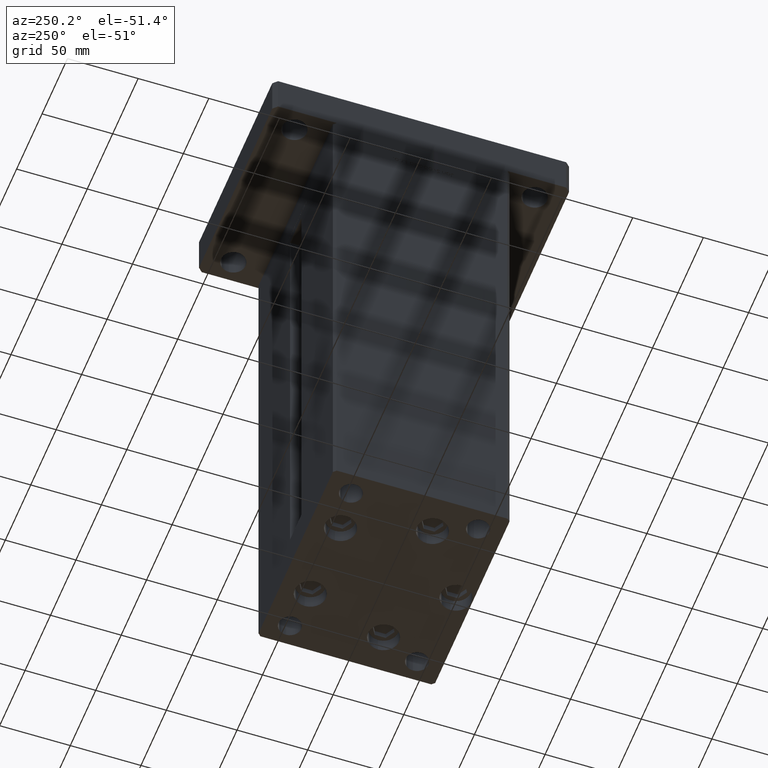
[diagram: clean part render]
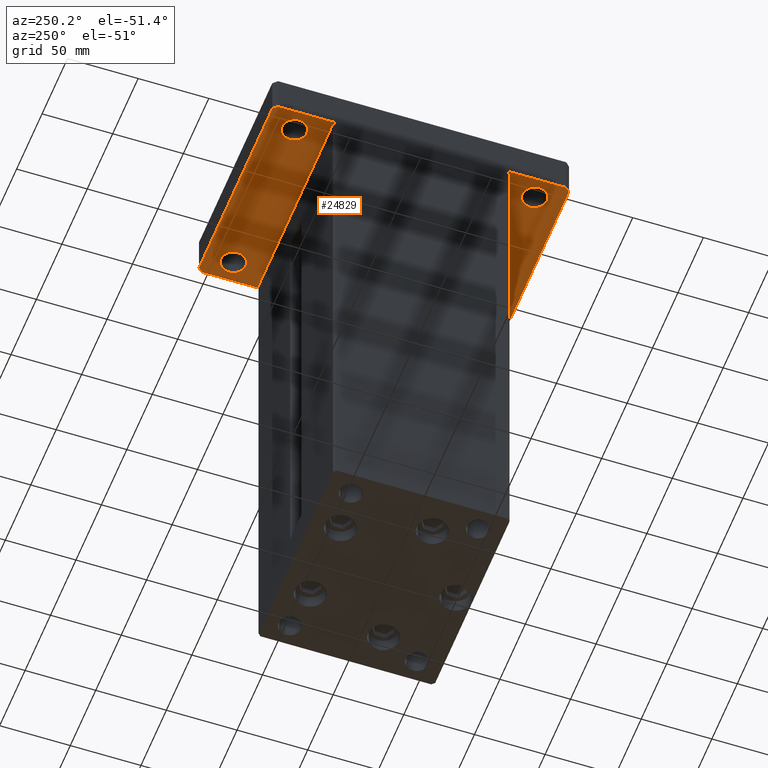
[diagram: same view with one face highlighted and labeled with its STEP entity id]
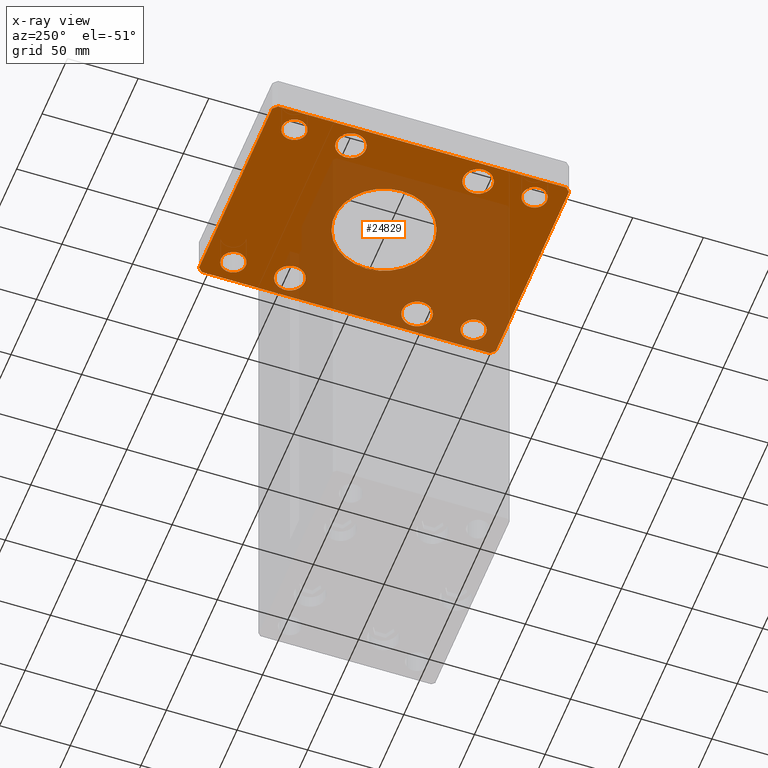
[diagram: x-ray of the same camera — body ghosted, the highlighted face saturated]
A machine part, auxiliary view. The second image highlights one B-rep face of the part: STEP entity #24829.
The next image is the same camera in x-ray: the body ghosted, the highlighted face saturated — about 51% of this face is hidden behind the body in this view.
In plain terms, the highlighted planar face has unit normal (0, 0, 1).
Its self-contained STEP definition (entity closure, byte-faithful):
#255 = CARTESIAN_POINT ( 'NONE',  ( -51.25000000000000000, 84.99999999999997158, 0.000000000000000000 ) ) ;
#442 = ORIENTED_EDGE ( 'NONE', *, *, #50654, .T. ) ;
#470 = CARTESIAN_POINT ( 'NONE',  ( 72.00000000000001421, -104.9999999999999005, 0.000000000000000000 ) ) ;
#559 = DIRECTION ( 'NONE',  ( 1.000000000000000000, 0.000000000000000000, 0.000000000000000000 ) ) ;
#1242 = EDGE_CURVE ( 'NONE', #22405, #18021, #42862, .T. ) ;
#1316 = DIRECTION ( 'NONE',  ( 0.000000000000000000, 0.000000000000000000, 1.000000000000000000 ) ) ;
#1515 = CARTESIAN_POINT ( 'NONE',  ( -60.00000000000000000, -45.00000000000000000, 0.000000000000000000 ) ) ;
#1863 = ORIENTED_EDGE ( 'NONE', *, *, #11640, .T. ) ;
#1977 = DIRECTION ( 'NONE',  ( 1.000000000000000000, 0.000000000000000000, 0.000000000000000000 ) ) ;
#2794 = FACE_BOUND ( 'NONE', #27972, .T. ) ;
#3466 = CARTESIAN_POINT ( 'NONE',  ( -49.49999999999999289, -45.00000000000000000, 0.000000000000000000 ) ) ;
#3600 = CARTESIAN_POINT ( 'NONE',  ( -70.50000000000000000, 45.00000000000001421, 0.000000000000000000 ) ) ;
#3755 = DIRECTION ( 'NONE',  ( 0.000000000000000000, 0.000000000000000000, 1.000000000000000000 ) ) ;
#3764 = EDGE_CURVE ( 'NONE', #18021, #22405, #30816, .T. ) ;
#3831 = ORIENTED_EDGE ( 'NONE', *, *, #45030, .T. ) ;
#3991 = CARTESIAN_POINT ( 'NONE',  ( -72.00000000000002842, 105.0000000000000000, 0.000000000000000000 ) ) ;
#4658 = DIRECTION ( 'NONE',  ( 1.000000000000000000, 0.000000000000000000, 0.000000000000000000 ) ) ;
#5007 = CIRCLE ( 'NONE', #30088, 8.750000000000007105 ) ;
#5110 = CARTESIAN_POINT ( 'NONE',  ( 59.99999999999997158, -85.00000000000001421, 0.000000000000000000 ) ) ;
#5449 = DIRECTION ( 'NONE',  ( 0.7071067811865474617, -0.7071067811865474617, 0.000000000000000000 ) ) ;
#5550 = EDGE_CURVE ( 'NONE', #18678, #5572, #30009, .T. ) ;
#5572 = VERTEX_POINT ( 'NONE', #44229 ) ;
#5652 = CARTESIAN_POINT ( 'NONE',  ( -60.00000000000000711, 84.99999999999997158, 0.000000000000000000 ) ) ;
#5734 = VERTEX_POINT ( 'NONE', #34669 ) ;
#5773 = VERTEX_POINT ( 'NONE', #10308 ) ;
#5792 = AXIS2_PLACEMENT_3D ( 'NONE', #19016, #35539, #1977 ) ;
#6113 = DIRECTION ( 'NONE',  ( 0.000000000000000000, 0.000000000000000000, 1.000000000000000000 ) ) ;
#6199 = DIRECTION ( 'NONE',  ( 0.000000000000000000, 0.000000000000000000, -1.000000000000000000 ) ) ;
#6334 = EDGE_CURVE ( 'NONE', #7937, #37228, #12750, .T. ) ;
#6558 = AXIS2_PLACEMENT_3D ( 'NONE', #19224, #52534, #15164 ) ;
#6820 = ORIENTED_EDGE ( 'NONE', *, *, #10736, .F. ) ;
#6857 = CIRCLE ( 'NONE', #18946, 10.49999999999999467 ) ;
#7284 = DIRECTION ( 'NONE',  ( 6.802837160693364103E-17, 1.000000000000000000, 0.000000000000000000 ) ) ;
#7603 = CIRCLE ( 'NONE', #50005, 10.49999999999999467 ) ;
#7937 = VERTEX_POINT ( 'NONE', #34480 ) ;
#8253 = DIRECTION ( 'NONE',  ( -1.000000000000000000, 0.000000000000000000, 0.000000000000000000 ) ) ;
#8947 = EDGE_CURVE ( 'NONE', #15430, #33850, #51732, .T. ) ;
#8950 = CARTESIAN_POINT ( 'NONE',  ( 68.74999999999997158, -85.00000000000001421, 0.000000000000000000 ) ) ;
#9074 = EDGE_LOOP ( 'NONE', ( #40344, #45353 ) ) ;
#9113 = EDGE_CURVE ( 'NONE', #37228, #7937, #9364, .T. ) ;
#9364 = CIRCLE ( 'NONE', #33563, 8.750000000000007105 ) ;
#9887 = EDGE_LOOP ( 'NONE', ( #19786, #40330 ) ) ;
#10308 = CARTESIAN_POINT ( 'NONE',  ( -72.00000000000002842, 105.0000000000000000, 0.000000000000000000 ) ) ;
#10532 = VECTOR ( 'NONE', #48154, 1000.000000000000000 ) ;
#10736 = EDGE_CURVE ( 'NONE', #40524, #5773, #31709, .T. ) ;
#11025 = CARTESIAN_POINT ( 'NONE',  ( -51.24999999999996447, -85.00000000000001421, 0.000000000000000000 ) ) ;
#11133 = DIRECTION ( 'NONE',  ( 0.000000000000000000, 0.000000000000000000, 1.000000000000000000 ) ) ;
#11166 = VECTOR ( 'NONE', #37466, 1000.000000000000000 ) ;
#11192 = CARTESIAN_POINT ( 'NONE',  ( -71.99999999999998579, -105.0000000000000142, 0.000000000000000000 ) ) ;
#11310 = CIRCLE ( 'NONE', #12166, 8.750000000000007105 ) ;
#11462 = PLANE ( 'NONE',  #20946 ) ;
#11617 = CARTESIAN_POINT ( 'NONE',  ( 75.00000000000000000, -101.9999999999999005, 0.000000000000000000 ) ) ;
#11631 = VECTOR ( 'NONE', #5449, 1000.000000000000114 ) ;
#11640 = EDGE_CURVE ( 'NONE', #5572, #18678, #6857, .T. ) ;
#11815 = AXIS2_PLACEMENT_3D ( 'NONE', #5652, #18343, #47086 ) ;
#12091 = EDGE_CURVE ( 'NONE', #14065, #50111, #40575, .T. ) ;
#12098 = DIRECTION ( 'NONE',  ( 0.000000000000000000, 0.000000000000000000, 1.000000000000000000 ) ) ;
#12166 = AXIS2_PLACEMENT_3D ( 'NONE', #37921, #20588, #29775 ) ;
#12247 = ORIENTED_EDGE ( 'NONE', *, *, #14221, .T. ) ;
#12286 = ORIENTED_EDGE ( 'NONE', *, *, #3764, .T. ) ;
#12617 = CARTESIAN_POINT ( 'NONE',  ( -68.75000000000000000, 84.99999999999997158, 0.000000000000000000 ) ) ;
#12750 = CIRCLE ( 'NONE', #23112, 8.750000000000007105 ) ;
#12839 = ORIENTED_EDGE ( 'NONE', *, *, #22794, .T. ) ;
#12900 = AXIS2_PLACEMENT_3D ( 'NONE', #22163, #6199, #51951 ) ;
#13592 = ORIENTED_EDGE ( 'NONE', *, *, #8947, .F. ) ;
#13865 = AXIS2_PLACEMENT_3D ( 'NONE', #22708, #14593, #30577 ) ;
#13905 = AXIS2_PLACEMENT_3D ( 'NONE', #20594, #49330, #53109 ) ;
#14065 = VERTEX_POINT ( 'NONE', #18574 ) ;
#14221 = EDGE_CURVE ( 'NONE', #29335, #16479, #47576, .T. ) ;
#14223 = CARTESIAN_POINT ( 'NONE',  ( 60.00000000000000000, 84.99999999999998579, 0.000000000000000000 ) ) ;
#14593 = DIRECTION ( 'NONE',  ( 0.000000000000000000, 0.000000000000000000, 1.000000000000000000 ) ) ;
#14933 = CARTESIAN_POINT ( 'NONE',  ( -75.00000000000001421, 102.0000000000000000, 0.000000000000000000 ) ) ;
#15128 = CARTESIAN_POINT ( 'NONE',  ( -60.00000000000000000, 45.00000000000001421, 0.000000000000000000 ) ) ;
#15164 = DIRECTION ( 'NONE',  ( 1.000000000000000000, 0.000000000000000000, 0.000000000000000000 ) ) ;
#15430 = VERTEX_POINT ( 'NONE', #22259 ) ;
#15782 = FACE_BOUND ( 'NONE', #43465, .T. ) ;
#15871 = EDGE_LOOP ( 'NONE', ( #38542, #12247 ) ) ;
#16002 = VERTEX_POINT ( 'NONE', #470 ) ;
#16479 = VERTEX_POINT ( 'NONE', #3600 ) ;
#16834 = AXIS2_PLACEMENT_3D ( 'NONE', #14223, #21538, #50789 ) ;
#16905 = CARTESIAN_POINT ( 'NONE',  ( 0.000000000000000000, 0.000000000000000000, 0.000000000000000000 ) ) ;
#17398 = VERTEX_POINT ( 'NONE', #46924 ) ;
#17430 = CIRCLE ( 'NONE', #46882, 10.50000000000000178 ) ;
#18021 = VERTEX_POINT ( 'NONE', #12617 ) ;
#18229 = DIRECTION ( 'NONE',  ( 1.000000000000000000, 0.000000000000000000, 0.000000000000000000 ) ) ;
#18343 = DIRECTION ( 'NONE',  ( 0.000000000000000000, 0.000000000000000000, 1.000000000000000000 ) ) ;
#18574 = CARTESIAN_POINT ( 'NONE',  ( 70.50000000000000000, -45.00000000000000711, 0.000000000000000000 ) ) ;
#18678 = VERTEX_POINT ( 'NONE', #50751 ) ;
#18715 = DIRECTION ( 'NONE',  ( 0.000000000000000000, 0.000000000000000000, 1.000000000000000000 ) ) ;
#18758 = DIRECTION ( 'NONE',  ( 0.000000000000000000, 0.000000000000000000, 1.000000000000000000 ) ) ;
#18946 = AXIS2_PLACEMENT_3D ( 'NONE', #21381, #28728, #559 ) ;
#18985 = DIRECTION ( 'NONE',  ( -1.000000000000000000, -1.927470528863118062E-16, 0.000000000000000000 ) ) ;
#19016 = CARTESIAN_POINT ( 'NONE',  ( 60.00000000000000000, 45.00000000000000711, 0.000000000000000000 ) ) ;
#19027 = CIRCLE ( 'NONE', #19878, 10.50000000000000178 ) ;
#19035 = FACE_BOUND ( 'NONE', #9074, .T. ) ;
#19224 = CARTESIAN_POINT ( 'NONE',  ( -60.00000000000000711, 84.99999999999997158, 0.000000000000000000 ) ) ;
#19301 = FACE_OUTER_BOUND ( 'NONE', #43524, .T. ) ;
#19560 = FACE_BOUND ( 'NONE', #37955, .T. ) ;
#19684 = LINE ( 'NONE', #40831, #10532 ) ;
#19760 = VECTOR ( 'NONE', #35277, 1000.000000000000000 ) ;
#19786 = ORIENTED_EDGE ( 'NONE', *, *, #39595, .T. ) ;
#19878 = AXIS2_PLACEMENT_3D ( 'NONE', #15128, #3755, #40860 ) ;
#19926 = VERTEX_POINT ( 'NONE', #14933 ) ;
#20085 = EDGE_CURVE ( 'NONE', #32495, #44641, #11310, .T. ) ;
#20588 = DIRECTION ( 'NONE',  ( 0.000000000000000000, 0.000000000000000000, 1.000000000000000000 ) ) ;
#20594 = CARTESIAN_POINT ( 'NONE',  ( 60.00000000000000000, 84.99999999999998579, 0.000000000000000000 ) ) ;
#20946 = AXIS2_PLACEMENT_3D ( 'NONE', #48569, #18758, #40432 ) ;
#21189 = ORIENTED_EDGE ( 'NONE', *, *, #23488, .F. ) ;
#21381 = CARTESIAN_POINT ( 'NONE',  ( 60.00000000000000000, 45.00000000000000711, 0.000000000000000000 ) ) ;
#21538 = DIRECTION ( 'NONE',  ( 0.000000000000000000, 0.000000000000000000, 1.000000000000000000 ) ) ;
#22055 = VERTEX_POINT ( 'NONE', #40208 ) ;
#22163 = CARTESIAN_POINT ( 'NONE',  ( 0.000000000000000000, 0.000000000000000000, 0.000000000000000000 ) ) ;
#22259 = CARTESIAN_POINT ( 'NONE',  ( 35.00000000000000711, 4.286263797015737285E-15, 0.000000000000000000 ) ) ;
#22405 = VERTEX_POINT ( 'NONE', #255 ) ;
#22708 = CARTESIAN_POINT ( 'NONE',  ( -60.00000000000000000, -45.00000000000000000, 0.000000000000000000 ) ) ;
#22794 = EDGE_CURVE ( 'NONE', #48088, #39858, #17430, .T. ) ;
#23034 = CARTESIAN_POINT ( 'NONE',  ( 72.00000000000004263, 105.0000000000000284, 0.000000000000000000 ) ) ;
#23112 = AXIS2_PLACEMENT_3D ( 'NONE', #51207, #42567, #4658 ) ;
#23488 = EDGE_CURVE ( 'NONE', #5734, #40524, #19684, .T. ) ;
#23664 = ORIENTED_EDGE ( 'NONE', *, *, #47984, .F. ) ;
#24401 = ORIENTED_EDGE ( 'NONE', *, *, #20085, .T. ) ;
#24829 = ADVANCED_FACE ( 'NONE', ( #19560, #19301, #19035, #15782, #2794, #36089, #52081, #32033, #35278, #52884 ), #11462, .F. ) ;
#24983 = ORIENTED_EDGE ( 'NONE', *, *, #52552, .F. ) ;
#26340 = CARTESIAN_POINT ( 'NONE',  ( 72.00000000000001421, -104.9999999999999005, 0.000000000000000000 ) ) ;
#26727 = CARTESIAN_POINT ( 'NONE',  ( -49.49999999999999289, 45.00000000000001421, 0.000000000000000000 ) ) ;
#27179 = EDGE_CURVE ( 'NONE', #36400, #17398, #50651, .T. ) ;
#27730 = VECTOR ( 'NONE', #7284, 1000.000000000000000 ) ;
#27972 = EDGE_LOOP ( 'NONE', ( #12286, #32759 ) ) ;
#28543 = CIRCLE ( 'NONE', #13865, 10.50000000000000178 ) ;
#28728 = DIRECTION ( 'NONE',  ( 0.000000000000000000, 0.000000000000000000, 1.000000000000000000 ) ) ;
#29335 = VERTEX_POINT ( 'NONE', #26727 ) ;
#29348 = AXIS2_PLACEMENT_3D ( 'NONE', #44599, #12098, #49463 ) ;
#29775 = DIRECTION ( 'NONE',  ( 1.000000000000000000, 0.000000000000000000, 0.000000000000000000 ) ) ;
#30009 = CIRCLE ( 'NONE', #5792, 10.49999999999999467 ) ;
#30088 = AXIS2_PLACEMENT_3D ( 'NONE', #5110, #1316, #51129 ) ;
#30388 = CARTESIAN_POINT ( 'NONE',  ( -60.00000000000000000, 45.00000000000001421, 0.000000000000000000 ) ) ;
#30577 = DIRECTION ( 'NONE',  ( 1.000000000000000000, 0.000000000000000000, 0.000000000000000000 ) ) ;
#30641 = EDGE_CURVE ( 'NONE', #16002, #51991, #33397, .T. ) ;
#30654 = CARTESIAN_POINT ( 'NONE',  ( 75.00000000000000000, -101.9999999999999005, 0.000000000000000000 ) ) ;
#30816 = CIRCLE ( 'NONE', #11815, 8.750000000000007105 ) ;
#31311 = EDGE_CURVE ( 'NONE', #48473, #22055, #45439, .T. ) ;
#31372 = CARTESIAN_POINT ( 'NONE',  ( 60.00000000000000000, -45.00000000000000711, 0.000000000000000000 ) ) ;
#31709 = LINE ( 'NONE', #23034, #36234 ) ;
#31966 = CARTESIAN_POINT ( 'NONE',  ( -59.99999999999997158, -85.00000000000001421, 0.000000000000000000 ) ) ;
#32006 = ORIENTED_EDGE ( 'NONE', *, *, #52112, .T. ) ;
#32033 = FACE_BOUND ( 'NONE', #49354, .T. ) ;
#32178 = DIRECTION ( 'NONE',  ( 0.000000000000000000, 0.000000000000000000, 1.000000000000000000 ) ) ;
#32258 = CARTESIAN_POINT ( 'NONE',  ( 72.00000000000004263, 105.0000000000000284, 0.000000000000000000 ) ) ;
#32495 = VERTEX_POINT ( 'NONE', #8950 ) ;
#32725 = AXIS2_PLACEMENT_3D ( 'NONE', #16905, #49692, #8253 ) ;
#32759 = ORIENTED_EDGE ( 'NONE', *, *, #1242, .T. ) ;
#32865 = CARTESIAN_POINT ( 'NONE',  ( -74.99999999999998579, -102.0000000000000142, 0.000000000000000000 ) ) ;
#32868 = LINE ( 'NONE', #33925, #11166 ) ;
#32963 = DIRECTION ( 'NONE',  ( -0.7071067811865459074, -0.7071067811865491270, 0.000000000000000000 ) ) ;
#33192 = EDGE_LOOP ( 'NONE', ( #442, #12839 ) ) ;
#33397 = LINE ( 'NONE', #26340, #34953 ) ;
#33563 = AXIS2_PLACEMENT_3D ( 'NONE', #31966, #11133, #18229 ) ;
#33850 = VERTEX_POINT ( 'NONE', #46286 ) ;
#33925 = CARTESIAN_POINT ( 'NONE',  ( -75.00000000000001421, 102.0000000000000000, 0.000000000000000000 ) ) ;
#34480 = CARTESIAN_POINT ( 'NONE',  ( -68.74999999999997158, -85.00000000000001421, 0.000000000000000000 ) ) ;
#34669 = CARTESIAN_POINT ( 'NONE',  ( 75.00000000000001421, 102.0000000000000142, 0.000000000000000000 ) ) ;
#34953 = VECTOR ( 'NONE', #42078, 1000.000000000000114 ) ;
#35033 = ORIENTED_EDGE ( 'NONE', *, *, #31311, .T. ) ;
#35277 = DIRECTION ( 'NONE',  ( 1.000000000000000000, 7.709882115452476194E-16, 0.000000000000000000 ) ) ;
#35278 = FACE_BOUND ( 'NONE', #15871, .T. ) ;
#35539 = DIRECTION ( 'NONE',  ( 0.000000000000000000, 0.000000000000000000, 1.000000000000000000 ) ) ;
#36089 = FACE_BOUND ( 'NONE', #33192, .T. ) ;
#36234 = VECTOR ( 'NONE', #18985, 1000.000000000000000 ) ;
#36236 = CIRCLE ( 'NONE', #12900, 35.00000000000000711 ) ;
#36287 = CARTESIAN_POINT ( 'NONE',  ( 68.75000000000000000, 84.99999999999998579, 0.000000000000000000 ) ) ;
#36400 = VERTEX_POINT ( 'NONE', #32865 ) ;
#37228 = VERTEX_POINT ( 'NONE', #11025 ) ;
#37298 = LINE ( 'NONE', #3991, #44072 ) ;
#37413 = CARTESIAN_POINT ( 'NONE',  ( 51.24999999999995737, -85.00000000000001421, 0.000000000000000000 ) ) ;
#37466 = DIRECTION ( 'NONE',  ( 1.360567432138672081E-16, -1.000000000000000000, 0.000000000000000000 ) ) ;
#37921 = CARTESIAN_POINT ( 'NONE',  ( 59.99999999999997158, -85.00000000000001421, 0.000000000000000000 ) ) ;
#37955 = EDGE_LOOP ( 'NONE', ( #23664, #13592 ) ) ;
#38042 = EDGE_LOOP ( 'NONE', ( #3831, #24401 ) ) ;
#38542 = ORIENTED_EDGE ( 'NONE', *, *, #51614, .T. ) ;
#38647 = CARTESIAN_POINT ( 'NONE',  ( -70.50000000000000000, -45.00000000000000000, 0.000000000000000000 ) ) ;
#38792 = DIRECTION ( 'NONE',  ( 1.000000000000000000, 0.000000000000000000, 0.000000000000000000 ) ) ;
#39595 = EDGE_CURVE ( 'NONE', #50111, #14065, #7603, .T. ) ;
#39858 = VERTEX_POINT ( 'NONE', #38647 ) ;
#40208 = CARTESIAN_POINT ( 'NONE',  ( 51.24999999999998579, 84.99999999999998579, 0.000000000000000000 ) ) ;
#40330 = ORIENTED_EDGE ( 'NONE', *, *, #12091, .T. ) ;
#40344 = ORIENTED_EDGE ( 'NONE', *, *, #6334, .T. ) ;
#40386 = ORIENTED_EDGE ( 'NONE', *, *, #42667, .F. ) ;
#40432 = DIRECTION ( 'NONE',  ( 1.000000000000000000, 0.000000000000000000, -0.000000000000000000 ) ) ;
#40524 = VERTEX_POINT ( 'NONE', #32258 ) ;
#40575 = CIRCLE ( 'NONE', #29348, 10.49999999999999467 ) ;
#40831 = CARTESIAN_POINT ( 'NONE',  ( 75.00000000000001421, 102.0000000000000142, 0.000000000000000000 ) ) ;
#40860 = DIRECTION ( 'NONE',  ( 1.000000000000000000, 0.000000000000000000, 0.000000000000000000 ) ) ;
#42078 = DIRECTION ( 'NONE',  ( 0.7071067811865459074, 0.7071067811865491270, 0.000000000000000000 ) ) ;
#42545 = CARTESIAN_POINT ( 'NONE',  ( -74.99999999999998579, -102.0000000000000142, 0.000000000000000000 ) ) ;
#42567 = DIRECTION ( 'NONE',  ( 0.000000000000000000, 0.000000000000000000, 1.000000000000000000 ) ) ;
#42667 = EDGE_CURVE ( 'NONE', #19926, #36400, #32868, .T. ) ;
#42862 = CIRCLE ( 'NONE', #6558, 8.750000000000007105 ) ;
#43184 = CARTESIAN_POINT ( 'NONE',  ( 49.50000000000000000, -45.00000000000000711, 0.000000000000000000 ) ) ;
#43465 = EDGE_LOOP ( 'NONE', ( #32006, #35033 ) ) ;
#43524 = EDGE_LOOP ( 'NONE', ( #45084, #52374, #40386, #47126, #6820, #21189, #24983, #53331 ) ) ;
#44072 = VECTOR ( 'NONE', #32963, 1000.000000000000114 ) ;
#44229 = CARTESIAN_POINT ( 'NONE',  ( 70.50000000000000000, 45.00000000000000711, 0.000000000000000000 ) ) ;
#44407 = LINE ( 'NONE', #11617, #27730 ) ;
#44599 = CARTESIAN_POINT ( 'NONE',  ( 60.00000000000000000, -45.00000000000000711, 0.000000000000000000 ) ) ;
#44641 = VERTEX_POINT ( 'NONE', #37413 ) ;
#45030 = EDGE_CURVE ( 'NONE', #44641, #32495, #5007, .T. ) ;
#45084 = ORIENTED_EDGE ( 'NONE', *, *, #47349, .F. ) ;
#45353 = ORIENTED_EDGE ( 'NONE', *, *, #9113, .T. ) ;
#45439 = CIRCLE ( 'NONE', #16834, 8.750000000000007105 ) ;
#45924 = CIRCLE ( 'NONE', #13905, 8.750000000000007105 ) ;
#46286 = CARTESIAN_POINT ( 'NONE',  ( -35.00000000000000711, 0.000000000000000000, 0.000000000000000000 ) ) ;
#46882 = AXIS2_PLACEMENT_3D ( 'NONE', #1515, #6113, #51587 ) ;
#46924 = CARTESIAN_POINT ( 'NONE',  ( -71.99999999999998579, -105.0000000000000142, 0.000000000000000000 ) ) ;
#47086 = DIRECTION ( 'NONE',  ( 1.000000000000000000, 0.000000000000000000, 0.000000000000000000 ) ) ;
#47126 = ORIENTED_EDGE ( 'NONE', *, *, #48751, .F. ) ;
#47349 = EDGE_CURVE ( 'NONE', #17398, #16002, #48568, .T. ) ;
#47576 = CIRCLE ( 'NONE', #52783, 10.50000000000000178 ) ;
#47913 = DIRECTION ( 'NONE',  ( 1.000000000000000000, 0.000000000000000000, 0.000000000000000000 ) ) ;
#47984 = EDGE_CURVE ( 'NONE', #33850, #15430, #36236, .T. ) ;
#48088 = VERTEX_POINT ( 'NONE', #3466 ) ;
#48154 = DIRECTION ( 'NONE',  ( -0.7071067811865426878, 0.7071067811865524577, 0.000000000000000000 ) ) ;
#48473 = VERTEX_POINT ( 'NONE', #36287 ) ;
#48568 = LINE ( 'NONE', #11192, #19760 ) ;
#48569 = CARTESIAN_POINT ( 'NONE',  ( 0.000000000000000000, 0.000000000000000000, 0.000000000000000000 ) ) ;
#48751 = EDGE_CURVE ( 'NONE', #5773, #19926, #37298, .T. ) ;
#49330 = DIRECTION ( 'NONE',  ( 0.000000000000000000, 0.000000000000000000, 1.000000000000000000 ) ) ;
#49354 = EDGE_LOOP ( 'NONE', ( #50199, #1863 ) ) ;
#49463 = DIRECTION ( 'NONE',  ( 1.000000000000000000, 0.000000000000000000, 0.000000000000000000 ) ) ;
#49692 = DIRECTION ( 'NONE',  ( 0.000000000000000000, 0.000000000000000000, -1.000000000000000000 ) ) ;
#50005 = AXIS2_PLACEMENT_3D ( 'NONE', #31372, #32178, #47913 ) ;
#50111 = VERTEX_POINT ( 'NONE', #43184 ) ;
#50199 = ORIENTED_EDGE ( 'NONE', *, *, #5550, .T. ) ;
#50651 = LINE ( 'NONE', #42545, #11631 ) ;
#50654 = EDGE_CURVE ( 'NONE', #39858, #48088, #28543, .T. ) ;
#50751 = CARTESIAN_POINT ( 'NONE',  ( 49.50000000000000000, 45.00000000000000711, 0.000000000000000000 ) ) ;
#50789 = DIRECTION ( 'NONE',  ( 1.000000000000000000, 0.000000000000000000, 0.000000000000000000 ) ) ;
#51129 = DIRECTION ( 'NONE',  ( 1.000000000000000000, 0.000000000000000000, 0.000000000000000000 ) ) ;
#51207 = CARTESIAN_POINT ( 'NONE',  ( -59.99999999999997158, -85.00000000000001421, 0.000000000000000000 ) ) ;
#51587 = DIRECTION ( 'NONE',  ( 1.000000000000000000, 0.000000000000000000, 0.000000000000000000 ) ) ;
#51614 = EDGE_CURVE ( 'NONE', #16479, #29335, #19027, .T. ) ;
#51732 = CIRCLE ( 'NONE', #32725, 35.00000000000000711 ) ;
#51951 = DIRECTION ( 'NONE',  ( -1.000000000000000000, 0.000000000000000000, 0.000000000000000000 ) ) ;
#51991 = VERTEX_POINT ( 'NONE', #30654 ) ;
#52081 = FACE_BOUND ( 'NONE', #9887, .T. ) ;
#52112 = EDGE_CURVE ( 'NONE', #22055, #48473, #45924, .T. ) ;
#52374 = ORIENTED_EDGE ( 'NONE', *, *, #27179, .F. ) ;
#52534 = DIRECTION ( 'NONE',  ( 0.000000000000000000, 0.000000000000000000, 1.000000000000000000 ) ) ;
#52552 = EDGE_CURVE ( 'NONE', #51991, #5734, #44407, .T. ) ;
#52783 = AXIS2_PLACEMENT_3D ( 'NONE', #30388, #18715, #38792 ) ;
#52884 = FACE_BOUND ( 'NONE', #38042, .T. ) ;
#53109 = DIRECTION ( 'NONE',  ( 1.000000000000000000, 0.000000000000000000, 0.000000000000000000 ) ) ;
#53331 = ORIENTED_EDGE ( 'NONE', *, *, #30641, .F. ) ;